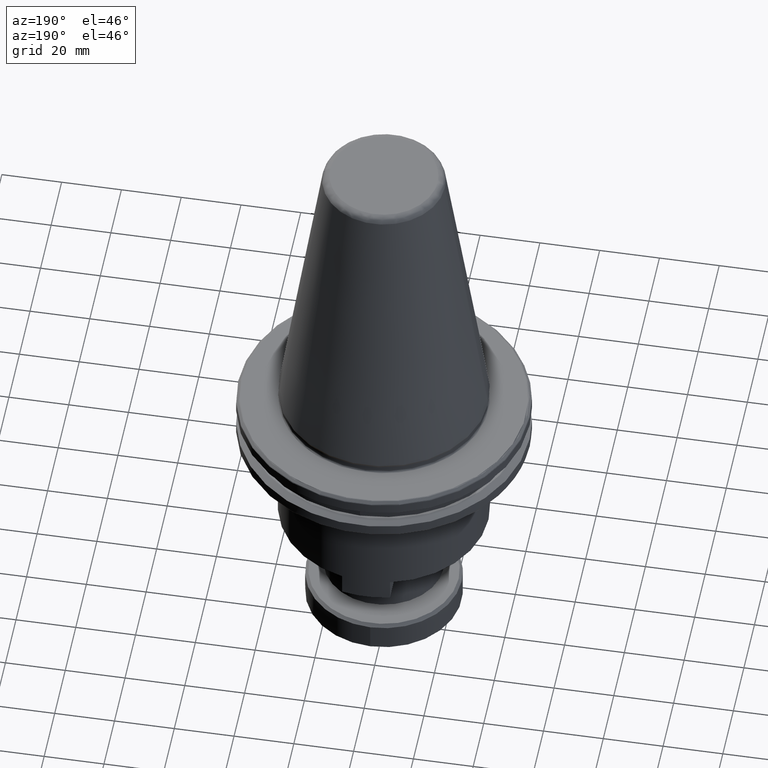
[diagram: clean part render]
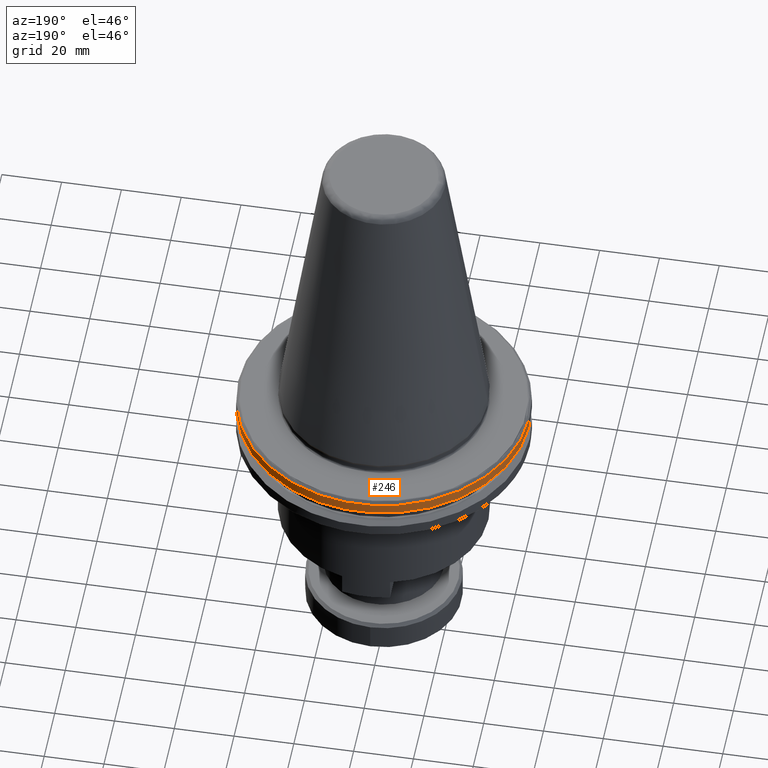
[diagram: same view with one face highlighted and labeled with its STEP entity id]
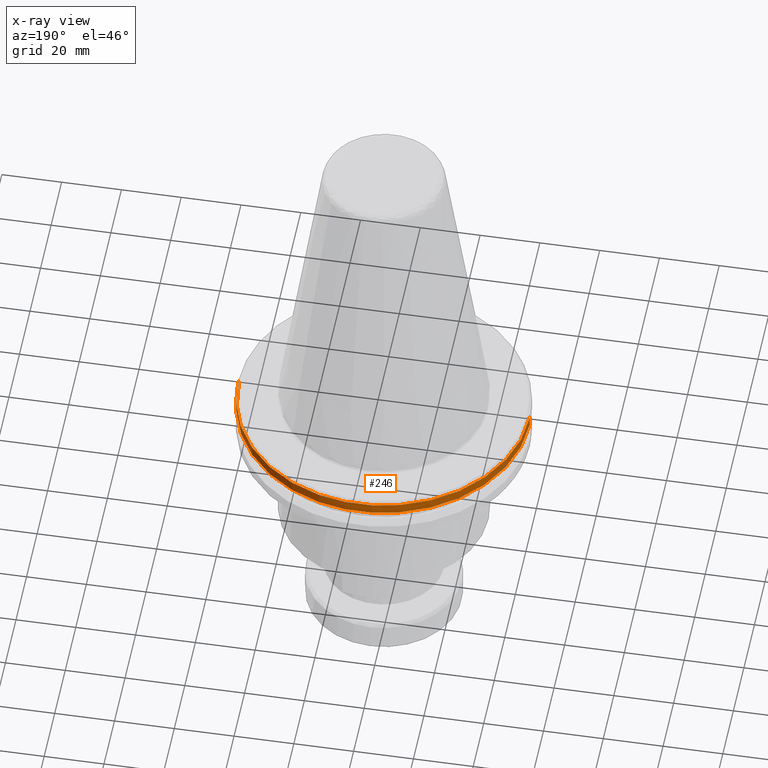
[diagram: x-ray of the same camera — body ghosted, the highlighted face saturated]
A machine part, auxiliary view. The second image highlights one B-rep face of the part: STEP entity #246.
The next image is the same camera in x-ray: the body ghosted, the highlighted face saturated — about 0% of this face is hidden behind the body in this view.
In plain terms, the highlighted cylindrical surface (partial cylindrical patch) has radius 48.75 mm, axis along (0, -0, 1).
Its self-contained STEP definition (entity closure, byte-faithful):
#67 = AXIS2_PLACEMENT_3D ( 'NONE', #3877, #1550, #4271 ) ;
#92 = CIRCLE ( 'NONE', #4385, 48.75000000000005700 ) ;
#94 = EDGE_CURVE ( 'NONE', #3739, #991, #4053, .T. ) ;
#135 = ORIENTED_EDGE ( 'NONE', *, *, #94, .F. ) ;
#212 = EDGE_LOOP ( 'NONE', ( #825, #2918, #2955, #135, #3386, #288, #4645, #3938 ) ) ;
#218 = VECTOR ( 'NONE', #1201, 1000.000000000000000 ) ;
#246 = ADVANCED_FACE ( 'NONE', ( #586 ), #1488, .T. ) ;
#288 = ORIENTED_EDGE ( 'NONE', *, *, #505, .F. ) ;
#451 = CARTESIAN_POINT ( 'NONE',  ( 122.1529126039459900, 190.0907862128020700, 215.9478740721940000 ) ) ;
#455 = DIRECTION ( 'NONE',  ( 1.000000000000000000, 0.0000000000000000000, 0.0000000000000000000 ) ) ;
#505 = EDGE_CURVE ( 'NONE', #969, #3758, #3082, .T. ) ;
#546 = AXIS2_PLACEMENT_3D ( 'NONE', #4980, #2795, #455 ) ;
#586 = FACE_OUTER_BOUND ( 'NONE', #212, .T. ) ;
#722 = EDGE_CURVE ( 'NONE', #766, #991, #3501, .T. ) ;
#766 = VERTEX_POINT ( 'NONE', #4301 ) ;
#825 = ORIENTED_EDGE ( 'NONE', *, *, #3594, .T. ) ;
#852 = DIRECTION ( 'NONE',  ( 1.000000000000000000, 0.0000000000000000000, 0.0000000000000000000 ) ) ;
#968 = CARTESIAN_POINT ( 'NONE',  ( 170.9029126039483800, 190.0907862113734000, 219.4345933842192600 ) ) ;
#969 = VERTEX_POINT ( 'NONE', #4632 ) ;
#979 = VERTEX_POINT ( 'NONE', #2704 ) ;
#991 = VERTEX_POINT ( 'NONE', #1534 ) ;
#1013 = VERTEX_POINT ( 'NONE', #5051 ) ;
#1201 = DIRECTION ( 'NONE',  ( 0.0000000000000000000, -0.0000000000000000000, 1.000000000000000000 ) ) ;
#1409 = DIRECTION ( 'NONE',  ( -0.0000000000000000000, 0.0000000000000000000, -1.000000000000000000 ) ) ;
#1413 = CARTESIAN_POINT ( 'NONE',  ( 135.5499907743277100, 236.9638146673054800, 215.9478740721940000 ) ) ;
#1488 = CYLINDRICAL_SURFACE ( 'NONE', #2033, 48.75000000000000000 ) ;
#1534 = CARTESIAN_POINT ( 'NONE',  ( 108.7558344327968500, 236.9638146670266700, 219.4345933841370600 ) ) ;
#1550 = DIRECTION ( 'NONE',  ( 0.0000000000000000000, -0.0000000000000000000, 1.000000000000000000 ) ) ;
#1805 = AXIS2_PLACEMENT_3D ( 'NONE', #3740, #1409, #4134 ) ;
#1821 = CARTESIAN_POINT ( 'NONE',  ( 122.1529126039459900, 190.0907862128019900, 219.4345933837370500 ) ) ;
#2033 = AXIS2_PLACEMENT_3D ( 'NONE', #2185, #4527, #4917 ) ;
#2041 = LINE ( 'NONE', #3912, #218 ) ;
#2102 = CIRCLE ( 'NONE', #3641, 48.75000000000000000 ) ;
#2162 = CIRCLE ( 'NONE', #67, 48.75000000000000000 ) ;
#2185 = CARTESIAN_POINT ( 'NONE',  ( 122.1529126039459900, 190.0907862128019900, 215.9478740731370600 ) ) ;
#2223 = DIRECTION ( 'NONE',  ( 1.000000000000000000, 0.0000000000000000000, 0.0000000000000000000 ) ) ;
#2244 = DIRECTION ( 'NONE',  ( -0.0000000000000000000, 0.0000000000000000000, -1.000000000000000000 ) ) ;
#2258 = DIRECTION ( 'NONE',  ( 0.0000000000000000000, -0.0000000000000000000, 1.000000000000000000 ) ) ;
#2287 = CARTESIAN_POINT ( 'NONE',  ( 135.5499907751539000, 236.9638146670098700, 219.4345933841370600 ) ) ;
#2498 = VERTEX_POINT ( 'NONE', #1413 ) ;
#2665 = CARTESIAN_POINT ( 'NONE',  ( 170.9029126039459900, 190.0907862128019900, 215.9478740731370600 ) ) ;
#2704 = CARTESIAN_POINT ( 'NONE',  ( 73.40291260394599200, 190.0907862128019900, 215.9478740741371300 ) ) ;
#2731 = EDGE_CURVE ( 'NONE', #979, #766, #2041, .T. ) ;
#2764 = EDGE_CURVE ( 'NONE', #2498, #1013, #92, .T. ) ;
#2795 = DIRECTION ( 'NONE',  ( -0.0000000000000000000, -0.0000000000000000000, 1.000000000000000000 ) ) ;
#2918 = ORIENTED_EDGE ( 'NONE', *, *, #2731, .T. ) ;
#2955 = ORIENTED_EDGE ( 'NONE', *, *, #722, .T. ) ;
#3082 = LINE ( 'NONE', #2665, #5020 ) ;
#3174 = DIRECTION ( 'NONE',  ( -0.0000000000000000000, -0.0000000000000000000, 1.000000000000000000 ) ) ;
#3273 = CIRCLE ( 'NONE', #1805, 48.74999999838618000 ) ;
#3386 = ORIENTED_EDGE ( 'NONE', *, *, #4014, .T. ) ;
#3501 = CIRCLE ( 'NONE', #4822, 48.75000000000000000 ) ;
#3594 = EDGE_CURVE ( 'NONE', #1013, #979, #2162, .T. ) ;
#3641 = AXIS2_PLACEMENT_3D ( 'NONE', #4572, #2244, #4961 ) ;
#3739 = VERTEX_POINT ( 'NONE', #2287 ) ;
#3740 = CARTESIAN_POINT ( 'NONE',  ( 122.1529126039459900, 190.0907862128019900, 215.9478740722053100 ) ) ;
#3758 = VERTEX_POINT ( 'NONE', #968 ) ;
#3877 = CARTESIAN_POINT ( 'NONE',  ( 122.1529126039459900, 190.0907862128019900, 215.9478740741371300 ) ) ;
#3892 = EDGE_CURVE ( 'NONE', #2498, #969, #3273, .T. ) ;
#3912 = CARTESIAN_POINT ( 'NONE',  ( 73.40291260394599200, 190.0907862128019900, 215.9478740731370600 ) ) ;
#3938 = ORIENTED_EDGE ( 'NONE', *, *, #2764, .T. ) ;
#4014 = EDGE_CURVE ( 'NONE', #3739, #3758, #2102, .T. ) ;
#4053 = CIRCLE ( 'NONE', #546, 48.74999999994287900 ) ;
#4134 = DIRECTION ( 'NONE',  ( 1.000000000000000000, -1.138690281704522400E-015, 0.0000000000000000000 ) ) ;
#4271 = DIRECTION ( 'NONE',  ( 1.000000000000000000, 0.0000000000000000000, 0.0000000000000000000 ) ) ;
#4301 = CARTESIAN_POINT ( 'NONE',  ( 73.40291260394599200, 190.0907862128019900, 219.4345933837370500 ) ) ;
#4385 = AXIS2_PLACEMENT_3D ( 'NONE', #451, #3174, #852 ) ;
#4527 = DIRECTION ( 'NONE',  ( 0.0000000000000000000, -0.0000000000000000000, 1.000000000000000000 ) ) ;
#4561 = DIRECTION ( 'NONE',  ( -0.0000000000000000000, 0.0000000000000000000, -1.000000000000000000 ) ) ;
#4572 = CARTESIAN_POINT ( 'NONE',  ( 122.1529126039459900, 190.0907862128019900, 219.4345933838198700 ) ) ;
#4632 = CARTESIAN_POINT ( 'NONE',  ( 170.9029126036696800, 190.0907862128019900, 215.9478740725116400 ) ) ;
#4645 = ORIENTED_EDGE ( 'NONE', *, *, #3892, .F. ) ;
#4822 = AXIS2_PLACEMENT_3D ( 'NONE', #1821, #4561, #2223 ) ;
#4917 = DIRECTION ( 'NONE',  ( 1.000000000000000000, 0.0000000000000000000, 0.0000000000000000000 ) ) ;
#4961 = DIRECTION ( 'NONE',  ( 1.000000000000000000, 1.138690281666827300E-015, 0.0000000000000000000 ) ) ;
#4980 = CARTESIAN_POINT ( 'NONE',  ( 122.1529126039459900, 190.0907862128020700, 219.4345933841370600 ) ) ;
#5020 = VECTOR ( 'NONE', #2258, 1000.000000000000000 ) ;
#5051 = CARTESIAN_POINT ( 'NONE',  ( 108.7558344327811300, 236.9638146670816600, 215.9478740721940000 ) ) ;